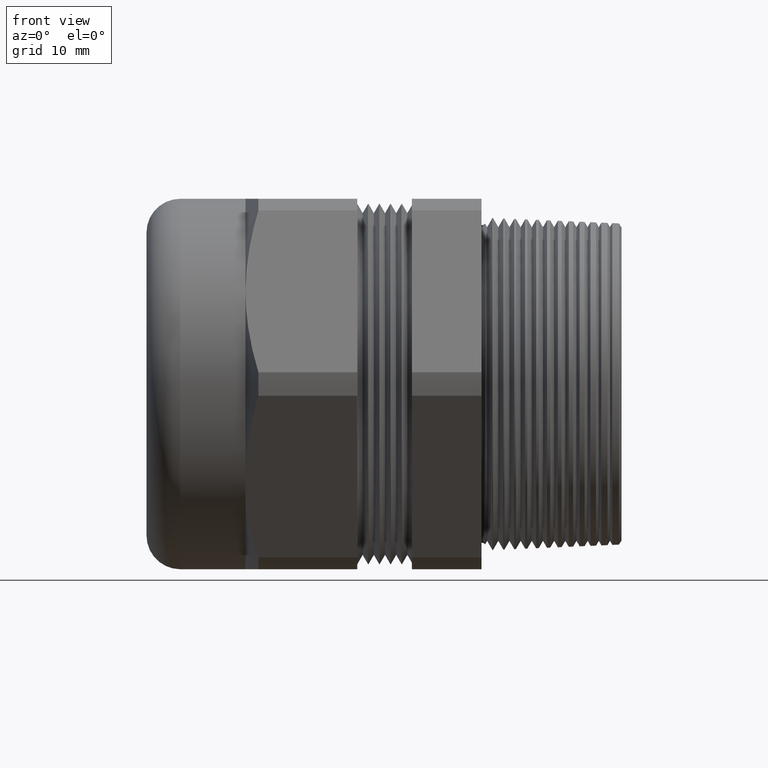
[diagram: clean part render]
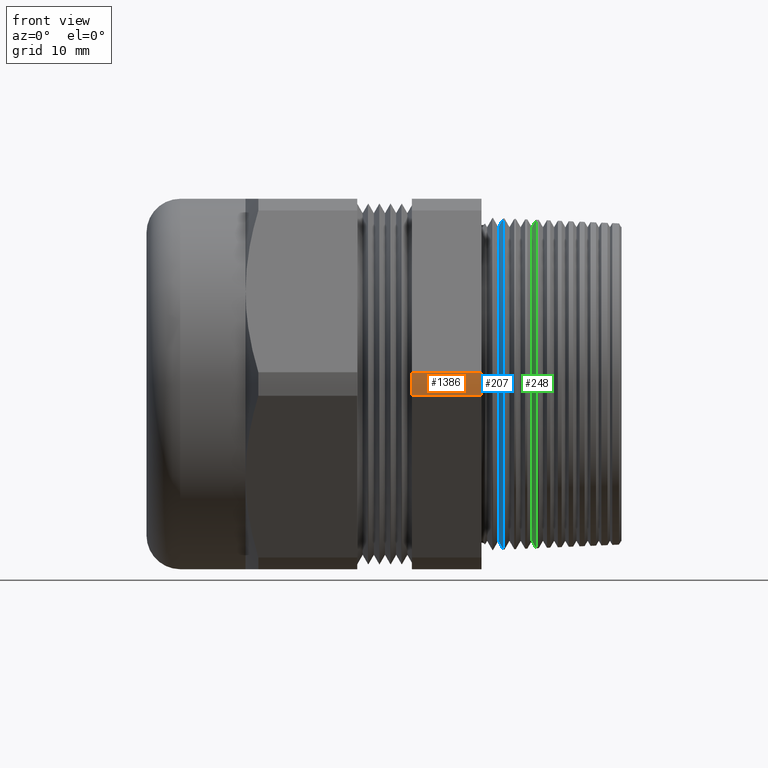
[diagram: same view with three faces highlighted in distinct colors, each labeled with its STEP entity id]
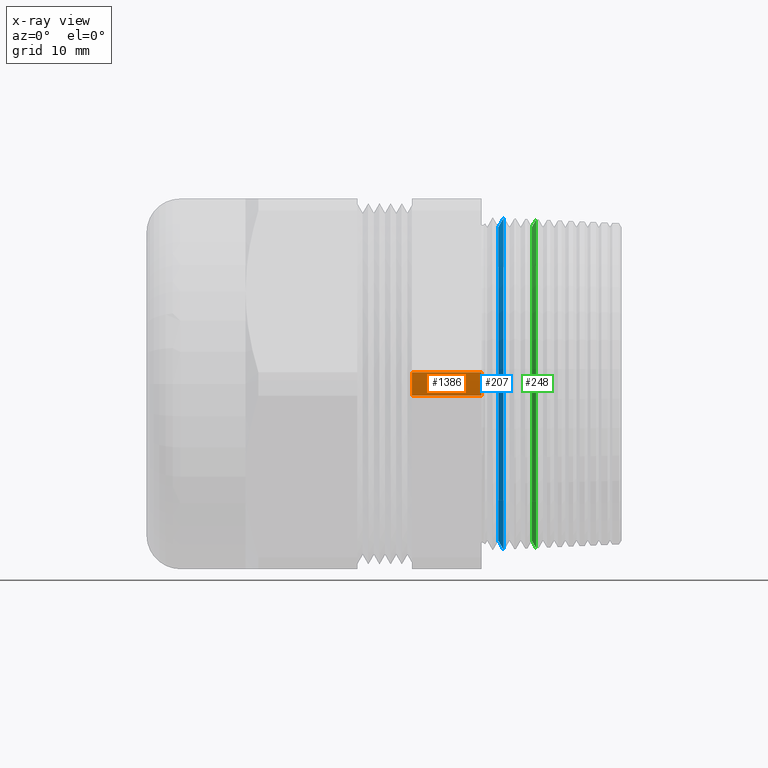
[diagram: x-ray of the same camera — body ghosted, the three highlighted faces saturated]
A machine part, front view with three faces highlighted in distinct colors.
The next image is the same camera in x-ray (body ghosted, the three faces saturated) — at least one of them is partly hidden behind the body in this view.
Their STEP definitions:

[orange] entity #1386 — the highlighted cylindrical surface (partial cylindrical patch) has radius 29.7282 mm, axis along (-1, 0, 0).
#1173 = VERTEX_POINT ( 'NONE', #3487 ) ;
#1333 = EDGE_LOOP ( 'NONE', ( #1387, #1390, #1391, #1394 ) ) ;
#1386 = ADVANCED_FACE ( 'NONE', ( #4000 ), #3998, .T. ) ;
#1387 = ORIENTED_EDGE ( 'NONE', *, *, #1388, .T. ) ;
#1388 = EDGE_CURVE ( 'NONE', #1389, #1173, #3999, .T. ) ;
#1389 = VERTEX_POINT ( 'NONE', #3990 ) ;
#1390 = ORIENTED_EDGE ( 'NONE', *, *, #1423, .T. ) ;
#1391 = ORIENTED_EDGE ( 'NONE', *, *, #1392, .F. ) ;
#1392 = EDGE_CURVE ( 'NONE', #1393, #1425, #3989, .T. ) ;
#1393 = VERTEX_POINT ( 'NONE', #3985 ) ;
#1394 = ORIENTED_EDGE ( 'NONE', *, *, #1395, .F. ) ;
#1395 = EDGE_CURVE ( 'NONE', #1389, #1393, #3984, .T. ) ;
#1423 = EDGE_CURVE ( 'NONE', #1173, #1425, #4010, .T. ) ;
#1425 = VERTEX_POINT ( 'NONE', #4067 ) ;
#3487 = CARTESIAN_POINT ( 'NONE',  ( 0.0000000000000000000, -1.168535519404734900, -0.06603710994211120500 ) ) ;
#3980 = DIRECTION ( 'NONE',  ( 0.0000000000000000000, 0.0000000000000000000, 1.000000000000000000 ) ) ;
#3981 = DIRECTION ( 'NONE',  ( -1.000000000000000000, 0.0000000000000000000, 0.0000000000000000000 ) ) ;
#3982 = CARTESIAN_POINT ( 'NONE',  ( -0.3930348258706468100, 0.0000000000000000000, 0.0000000000000000000 ) ) ;
#3983 = AXIS2_PLACEMENT_3D ( 'NONE', #3982, #3981, #3980 ) ;
#3984 = CIRCLE ( 'NONE', #3983, 1.170400000000000100 ) ;
#3985 = CARTESIAN_POINT ( 'NONE',  ( -0.3930348258706468100, -1.168535519404735100, 0.06603710994211092800 ) ) ;
#3986 = DIRECTION ( 'NONE',  ( 1.000000000000000000, 0.0000000000000000000, 0.0000000000000000000 ) ) ;
#3987 = VECTOR ( 'NONE', #3986, 39.37007874015748100 ) ;
#3988 = CARTESIAN_POINT ( 'NONE',  ( -4.674745017870971100, -1.168535519404735100, 0.06603710994211092800 ) ) ;
#3989 = LINE ( 'NONE', #3988, #3987 ) ;
#3990 = CARTESIAN_POINT ( 'NONE',  ( -0.3930348258706468100, -1.168535519404734900, -0.06603710994211120500 ) ) ;
#3991 = DIRECTION ( 'NONE',  ( 1.000000000000000000, 0.0000000000000000000, 0.0000000000000000000 ) ) ;
#3992 = VECTOR ( 'NONE', #3991, 39.37007874015748100 ) ;
#3993 = CARTESIAN_POINT ( 'NONE',  ( -4.674745017870971100, -1.168535519404734900, -0.06603710994211120500 ) ) ;
#3994 = DIRECTION ( 'NONE',  ( 0.0000000000000000000, 0.0000000000000000000, 1.000000000000000000 ) ) ;
#3995 = DIRECTION ( 'NONE',  ( -1.000000000000000000, 0.0000000000000000000, 0.0000000000000000000 ) ) ;
#3996 = CARTESIAN_POINT ( 'NONE',  ( -0.7238591030180623300, 0.0000000000000000000, 0.0000000000000000000 ) ) ;
#3997 = AXIS2_PLACEMENT_3D ( 'NONE', #3996, #3995, #3994 ) ;
#3998 = CYLINDRICAL_SURFACE ( 'NONE', #3997, 1.170400000000000100 ) ;
#3999 = LINE ( 'NONE', #3993, #3992 ) ;
#4000 = FACE_OUTER_BOUND ( 'NONE', #1333, .T. ) ;
#4006 = DIRECTION ( 'NONE',  ( 0.0000000000000000000, 0.0000000000000000000, 1.000000000000000000 ) ) ;
#4007 = DIRECTION ( 'NONE',  ( -1.000000000000000000, 0.0000000000000000000, 0.0000000000000000000 ) ) ;
#4008 = CARTESIAN_POINT ( 'NONE',  ( 0.0000000000000000000, 0.0000000000000000000, 0.0000000000000000000 ) ) ;
#4009 = AXIS2_PLACEMENT_3D ( 'NONE', #4008, #4007, #4006 ) ;
#4010 = CIRCLE ( 'NONE', #4009, 1.170400000000000100 ) ;
#4067 = CARTESIAN_POINT ( 'NONE',  ( 0.0000000000000000000, -1.168535519404735100, 0.06603710994211092800 ) ) ;

[blue] entity #207 — the highlighted conical surface has half-angle 60 deg.
#201 = EDGE_CURVE ( 'NONE', #646, #645, #1736, .T. ) ;
#207 = ADVANCED_FACE ( 'NONE', ( #1787 ), #1784, .T. ) ;
#208 = EDGE_LOOP ( 'NONE', ( #209, #210, #212, #213 ) ) ;
#209 = ORIENTED_EDGE ( 'NONE', *, *, #648, .F. ) ;
#210 = ORIENTED_EDGE ( 'NONE', *, *, #201, .F. ) ;
#212 = ORIENTED_EDGE ( 'NONE', *, *, #696, .T. ) ;
#213 = ORIENTED_EDGE ( 'NONE', *, *, #1159, .T. ) ;
#645 = VERTEX_POINT ( 'NONE', #2473 ) ;
#646 = VERTEX_POINT ( 'NONE', #2472 ) ;
#648 = EDGE_CURVE ( 'NONE', #645, #649, #2471, .T. ) ;
#649 = VERTEX_POINT ( 'NONE', #2467 ) ;
#652 = VERTEX_POINT ( 'NONE', #2524 ) ;
#696 = EDGE_CURVE ( 'NONE', #646, #652, #2561, .T. ) ;
#1159 = EDGE_CURVE ( 'NONE', #652, #649, #3455, .T. ) ;
#1732 = DIRECTION ( 'NONE',  ( 0.0000000000000000000, 0.0000000000000000000, 1.000000000000000000 ) ) ;
#1733 = DIRECTION ( 'NONE',  ( -1.000000000000000000, 0.0000000000000000000, 0.0000000000000000000 ) ) ;
#1734 = CARTESIAN_POINT ( 'NONE',  ( 0.09483192707642861000, 0.0000000000000000000, 0.0000000000000000000 ) ) ;
#1735 = AXIS2_PLACEMENT_3D ( 'NONE', #1734, #1733, #1732 ) ;
#1736 = CIRCLE ( 'NONE', #1735, 0.8848654850007970900 ) ;
#1781 = DIRECTION ( 'NONE',  ( 0.0000000000000000000, 0.0000000000000000000, -1.000000000000000000 ) ) ;
#1782 = DIRECTION ( 'NONE',  ( 1.000000000000000000, 0.0000000000000000000, 0.0000000000000000000 ) ) ;
#1783 = AXIS2_PLACEMENT_3D ( 'NONE', #1786, #1782, #1781 ) ;
#1784 = CONICAL_SURFACE ( 'NONE', #1783, 0.8848654850007970900, 1.047197551196597200 ) ;
#1786 = CARTESIAN_POINT ( 'NONE',  ( 0.09483192707642861000, 0.0000000000000000000, 0.0000000000000000000 ) ) ;
#1787 = FACE_OUTER_BOUND ( 'NONE', #208, .T. ) ;
#2467 = CARTESIAN_POINT ( 'NONE',  ( 0.1235494616827678400, 0.0000000000000000000, 0.9346057140070912500 ) ) ;
#2468 = DIRECTION ( 'NONE',  ( 0.5000000000000004400, 1.060575238724906400E-016, 0.8660254037844383700 ) ) ;
#2469 = VECTOR ( 'NONE', #2468, 39.37007874015748100 ) ;
#2470 = CARTESIAN_POINT ( 'NONE',  ( 0.09483192707642861000, 1.083647683882196400E-016, 0.8848654850007970900 ) ) ;
#2471 = LINE ( 'NONE', #2470, #2469 ) ;
#2472 = CARTESIAN_POINT ( 'NONE',  ( 0.09483192707642861000, 1.115680001983653300E-016, -0.8848654850007970900 ) ) ;
#2473 = CARTESIAN_POINT ( 'NONE',  ( 0.09483192707642861000, 0.0000000000000000000, 0.8848654850007970900 ) ) ;
#2524 = CARTESIAN_POINT ( 'NONE',  ( 0.1235494616827678400, 1.144561896123610800E-016, -0.9346057140070912500 ) ) ;
#2561 = LINE ( 'NONE', #2616, #2615 ) ;
#2614 = DIRECTION ( 'NONE',  ( 0.5000000000000004400, 0.0000000000000000000, -0.8660254037844383700 ) ) ;
#2615 = VECTOR ( 'NONE', #2614, 39.37007874015748100 ) ;
#2616 = CARTESIAN_POINT ( 'NONE',  ( 0.09483192707642861000, 0.0000000000000000000, -0.8848654850007970900 ) ) ;
#3195 = DIRECTION ( 'NONE',  ( -1.000000000000000000, 0.0000000000000000000, 0.0000000000000000000 ) ) ;
#3454 = AXIS2_PLACEMENT_3D ( 'NONE', #3459, #3195, #3515 ) ;
#3455 = CIRCLE ( 'NONE', #3454, 0.9346057140070913600 ) ;
#3459 = CARTESIAN_POINT ( 'NONE',  ( 0.1235494616827678400, 0.0000000000000000000, 0.0000000000000000000 ) ) ;
#3515 = DIRECTION ( 'NONE',  ( 0.0000000000000000000, 0.0000000000000000000, -1.000000000000000000 ) ) ;

[green] entity #248 — the highlighted conical surface has half-angle 60 deg.
#243 = EDGE_CURVE ( 'NONE', #563, #562, #1813, .T. ) ;
#248 = ADVANCED_FACE ( 'NONE', ( #1805 ), #1804, .T. ) ;
#249 = EDGE_LOOP ( 'NONE', ( #250, #251, #301, #302 ) ) ;
#250 = ORIENTED_EDGE ( 'NONE', *, *, #565, .F. ) ;
#251 = ORIENTED_EDGE ( 'NONE', *, *, #243, .F. ) ;
#301 = ORIENTED_EDGE ( 'NONE', *, *, #623, .T. ) ;
#302 = ORIENTED_EDGE ( 'NONE', *, *, #1121, .T. ) ;
#562 = VERTEX_POINT ( 'NONE', #2321 ) ;
#563 = VERTEX_POINT ( 'NONE', #2320 ) ;
#565 = EDGE_CURVE ( 'NONE', #562, #566, #2319, .T. ) ;
#566 = VERTEX_POINT ( 'NONE', #2315 ) ;
#621 = VERTEX_POINT ( 'NONE', #2459 ) ;
#623 = EDGE_CURVE ( 'NONE', #563, #621, #2458, .T. ) ;
#1121 = EDGE_CURVE ( 'NONE', #621, #566, #3414, .T. ) ;
#1799 = DIRECTION ( 'NONE',  ( 0.0000000000000000000, 0.0000000000000000000, -1.000000000000000000 ) ) ;
#1800 = DIRECTION ( 'NONE',  ( 1.000000000000000000, 0.0000000000000000000, 0.0000000000000000000 ) ) ;
#1801 = CARTESIAN_POINT ( 'NONE',  ( 0.2838319270764286300, 0.0000000000000000000, 0.0000000000000000000 ) ) ;
#1802 = AXIS2_PLACEMENT_3D ( 'NONE', #1801, #1800, #1799 ) ;
#1804 = CONICAL_SURFACE ( 'NONE', #1802, 0.8848654850007970900, 1.047197551196597200 ) ;
#1805 = FACE_OUTER_BOUND ( 'NONE', #249, .T. ) ;
#1810 = DIRECTION ( 'NONE',  ( 0.0000000000000000000, 0.0000000000000000000, 1.000000000000000000 ) ) ;
#1811 = DIRECTION ( 'NONE',  ( -1.000000000000000000, 0.0000000000000000000, 0.0000000000000000000 ) ) ;
#1812 = AXIS2_PLACEMENT_3D ( 'NONE', #1818, #1811, #1810 ) ;
#1813 = CIRCLE ( 'NONE', #1812, 0.8848654850007970900 ) ;
#1818 = CARTESIAN_POINT ( 'NONE',  ( 0.2838319270764286300, 0.0000000000000000000, 0.0000000000000000000 ) ) ;
#2315 = CARTESIAN_POINT ( 'NONE',  ( 0.3079023571020302300, 0.0000000000000000000, 0.9265566927651718300 ) ) ;
#2316 = DIRECTION ( 'NONE',  ( 0.5000000000000004400, 1.060575238724906400E-016, 0.8660254037844383700 ) ) ;
#2317 = VECTOR ( 'NONE', #2316, 39.37007874015748100 ) ;
#2318 = CARTESIAN_POINT ( 'NONE',  ( 0.2838319270764286300, 1.083647683882196400E-016, 0.8848654850007970900 ) ) ;
#2319 = LINE ( 'NONE', #2318, #2317 ) ;
#2320 = CARTESIAN_POINT ( 'NONE',  ( 0.2838319270764286300, 1.110496495313551000E-016, -0.8848654850007970900 ) ) ;
#2321 = CARTESIAN_POINT ( 'NONE',  ( 0.2838319270764286300, 0.0000000000000000000, 0.8848654850007970900 ) ) ;
#2455 = DIRECTION ( 'NONE',  ( 0.5000000000000004400, 0.0000000000000000000, -0.8660254037844383700 ) ) ;
#2456 = VECTOR ( 'NONE', #2455, 39.37007874015748100 ) ;
#2457 = CARTESIAN_POINT ( 'NONE',  ( 0.2838319270764286300, 0.0000000000000000000, -0.8848654850007970900 ) ) ;
#2458 = LINE ( 'NONE', #2457, #2456 ) ;
#2459 = CARTESIAN_POINT ( 'NONE',  ( 0.3079023571020302300, 1.134704688023425400E-016, -0.9265566927651718300 ) ) ;
#3409 = DIRECTION ( 'NONE',  ( 0.0000000000000000000, 0.0000000000000000000, -1.000000000000000000 ) ) ;
#3411 = DIRECTION ( 'NONE',  ( -1.000000000000000000, 0.0000000000000000000, 0.0000000000000000000 ) ) ;
#3412 = CARTESIAN_POINT ( 'NONE',  ( 0.3079023571020302300, 0.0000000000000000000, 0.0000000000000000000 ) ) ;
#3413 = AXIS2_PLACEMENT_3D ( 'NONE', #3412, #3411, #3409 ) ;
#3414 = CIRCLE ( 'NONE', #3413, 0.9265566927651720500 ) ;